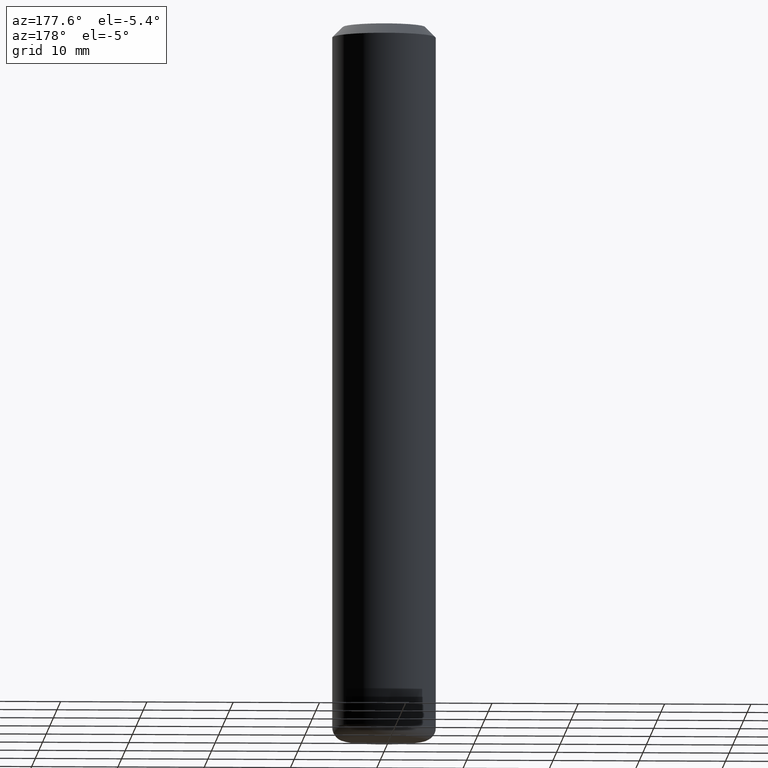
[diagram: clean part render]
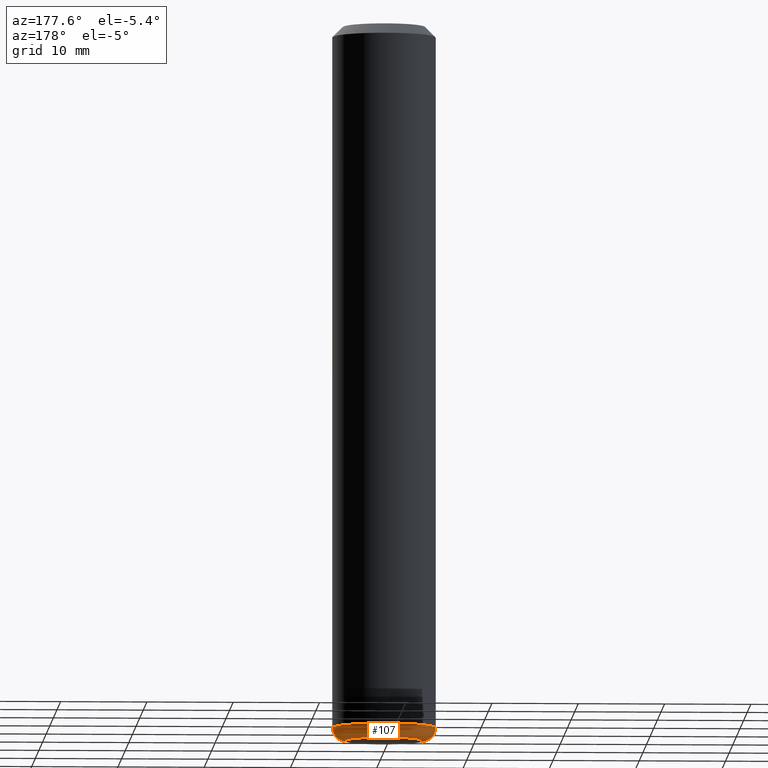
[diagram: same view with one face highlighted and labeled with its STEP entity id]
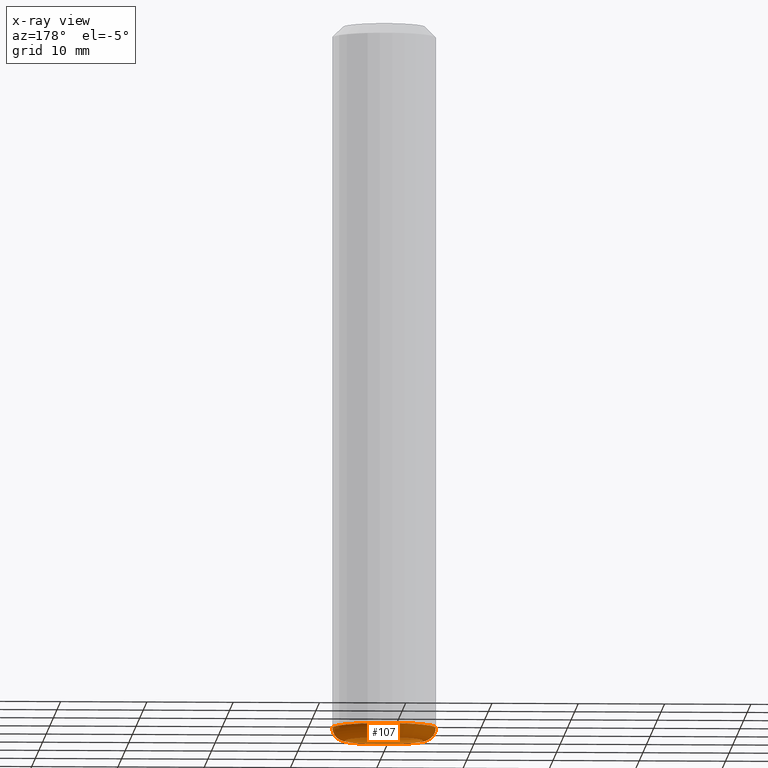
[diagram: x-ray of the same camera — body ghosted, the highlighted face saturated]
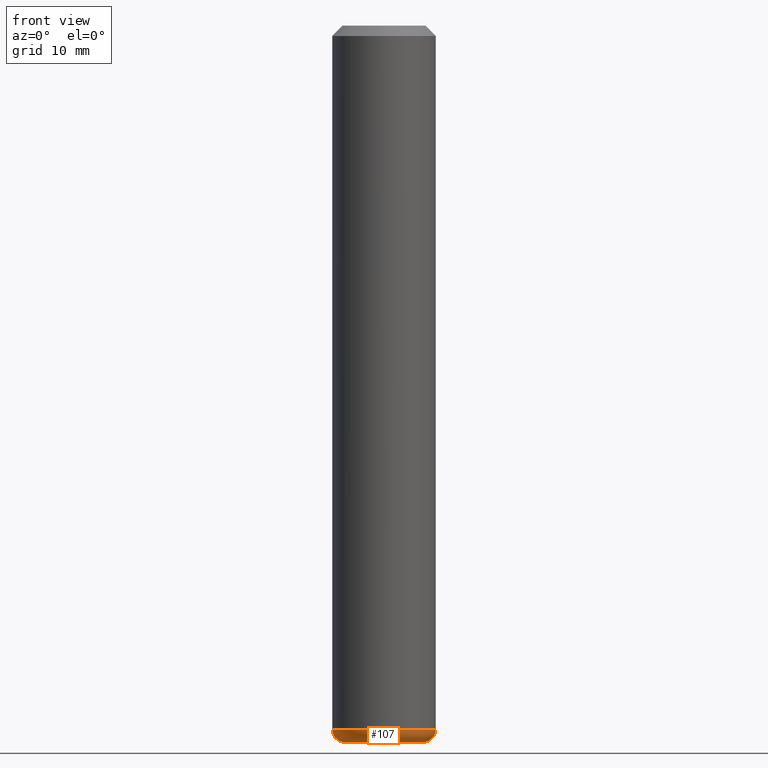
[diagram: same view with one face highlighted and labeled with its STEP entity id]
A machine part, auxiliary view. The second image highlights one B-rep face of the part: STEP entity #107.
The next image is the same camera in x-ray: the body ghosted, the highlighted face saturated — about 2% of this face is hidden behind the body in this view.
A second angle (front view) of the same face is appended — the face is thin or edge-on in the first view.
In plain terms, the highlighted toroidal blend (fillet) surface has major radius 4.5 mm and minor (blend) radius 1.5 mm.
Its self-contained STEP definition (entity closure, byte-faithful):
#3 = AXIS2_PLACEMENT_3D ( 'NONE', #160, #59, #6 ) ;
#6 = DIRECTION ( 'NONE',  ( -1.000000000000000000, 0.0000000000000000000, 6.938893903907212600E-15 ) ) ;
#13 = DIRECTION ( 'NONE',  ( -1.000000000000000000, 0.0000000000000000000, 7.970561502160112194E-15 ) ) ;
#20 = DIRECTION ( 'NONE',  ( -7.970561502160112194E-15, 0.0000000000000000000, -1.000000000000000000 ) ) ;
#38 = AXIS2_PLACEMENT_3D ( 'NONE', #73, #197, #47 ) ;
#47 = DIRECTION ( 'NONE',  ( -1.000000000000000000, 0.0000000000000000000, 9.251858538542942245E-15 ) ) ;
#59 = DIRECTION ( 'NONE',  ( -7.970561502160112194E-15, 0.0000000000000000000, -1.000000000000000000 ) ) ;
#63 = VERTEX_POINT ( 'NONE', #102 ) ;
#72 = TOROIDAL_SURFACE ( 'NONE', #200, 4.500000000000012434, 1.500000000000000444 ) ;
#73 = CARTESIAN_POINT ( 'NONE',  ( -6.052634716842801132E-13, 0.0000000000000000000, -83.00000000000000000 ) ) ;
#82 = ORIENTED_EDGE ( 'NONE', *, *, #184, .F. ) ;
#84 = EDGE_LOOP ( 'NONE', ( #82 ) ) ;
#102 = CARTESIAN_POINT ( 'NONE',  ( -4.500000000000619949, 0.0000000000000000000, -82.99999999999995737 ) ) ;
#105 = CARTESIAN_POINT ( 'NONE',  ( -6.000000000000606626, 0.0000000000000000000, -81.49999999999995737 ) ) ;
#107 = ADVANCED_FACE ( 'NONE', ( #147, #182 ), #72, .T. ) ;
#110 = EDGE_CURVE ( 'NONE', #157, #157, #188, .T. ) ;
#136 = EDGE_LOOP ( 'NONE', ( #183 ) ) ;
#145 = CIRCLE ( 'NONE', #38, 4.500000000000014211 ) ;
#147 = FACE_OUTER_BOUND ( 'NONE', #136, .T. ) ;
#157 = VERTEX_POINT ( 'NONE', #105 ) ;
#160 = CARTESIAN_POINT ( 'NONE',  ( -5.933076294310400002E-13, 0.0000000000000000000, -81.50000000000000000 ) ) ;
#175 = CARTESIAN_POINT ( 'NONE',  ( -5.933975868951060993E-13, 0.0000000000000000000, -81.50000000000000000 ) ) ;
#182 = FACE_OUTER_BOUND ( 'NONE', #84, .T. ) ;
#183 = ORIENTED_EDGE ( 'NONE', *, *, #110, .T. ) ;
#184 = EDGE_CURVE ( 'NONE', #63, #63, #145, .T. ) ;
#188 = CIRCLE ( 'NONE', #3, 6.000000000000013323 ) ;
#197 = DIRECTION ( 'NONE',  ( -7.970561502160112194E-15, 0.0000000000000000000, -1.000000000000000000 ) ) ;
#200 = AXIS2_PLACEMENT_3D ( 'NONE', #175, #20, #13 ) ;